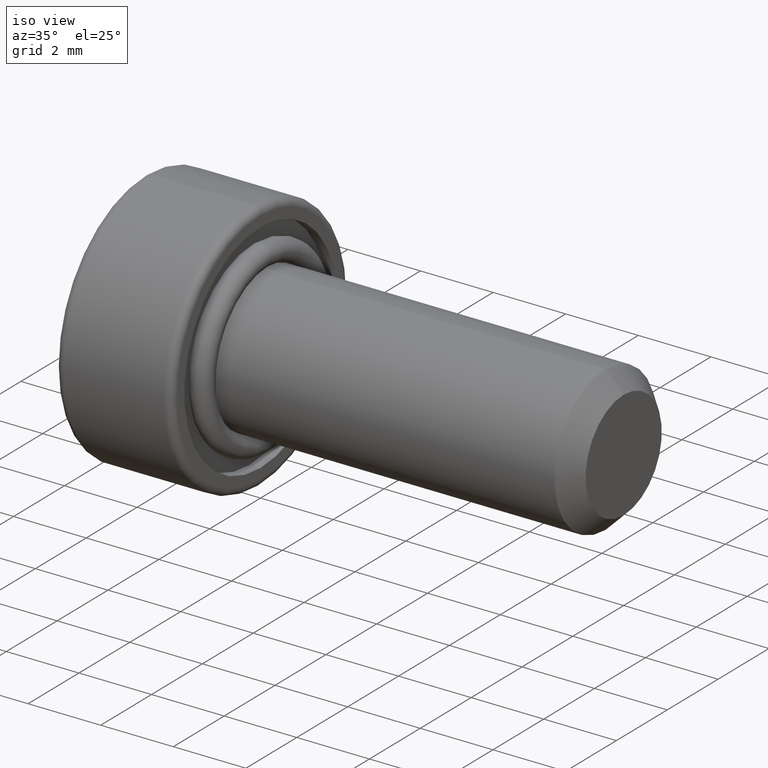
[diagram: clean part render]
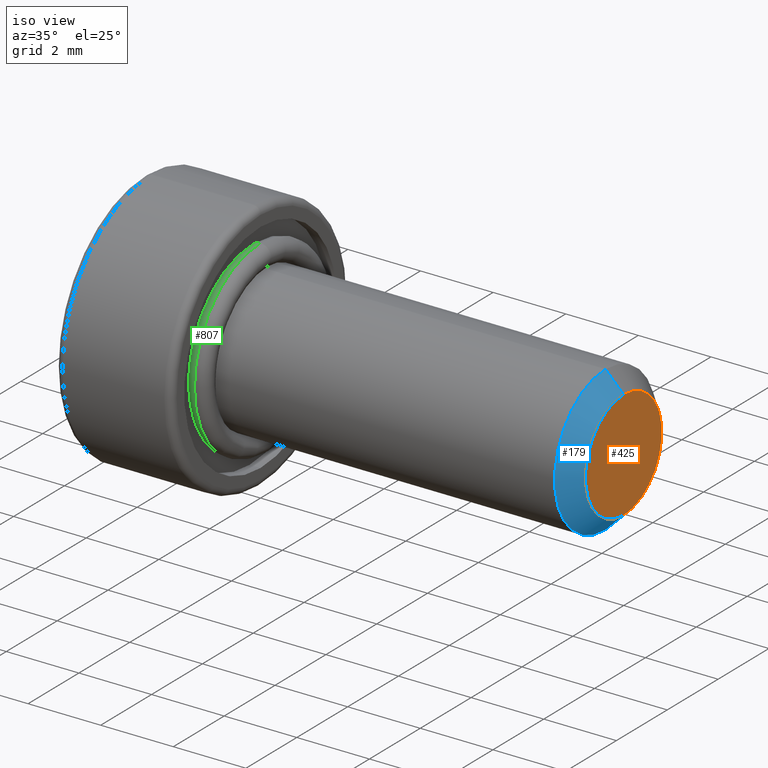
[diagram: same view with three faces highlighted in distinct colors, each labeled with its STEP entity id]
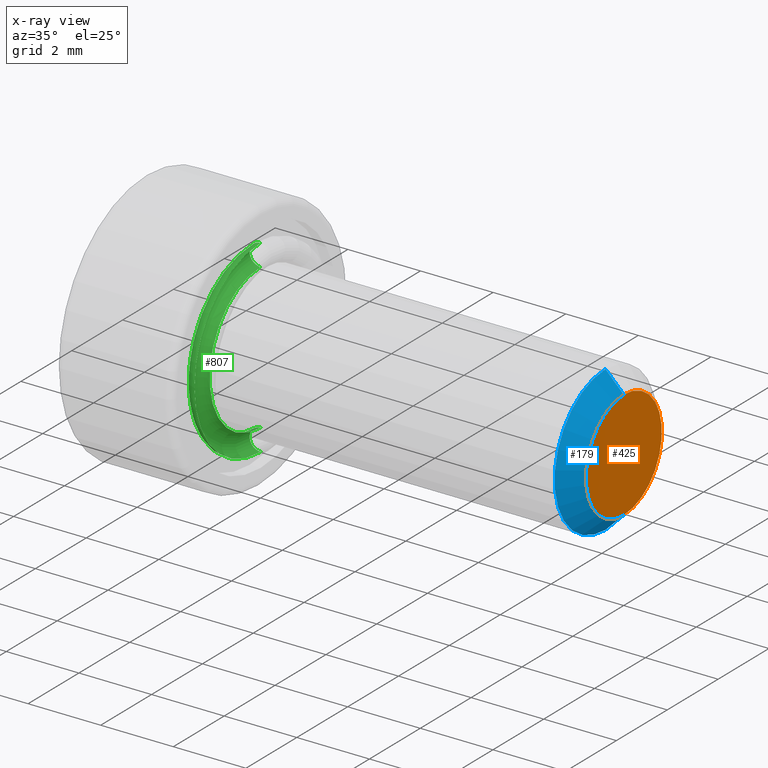
[diagram: x-ray of the same camera — body ghosted, the three highlighted faces saturated]
A machine part, iso view with three faces highlighted in distinct colors.
The next image is the same camera in x-ray (body ghosted, the three faces saturated) — at least one of them is partly hidden behind the body in this view.
Their STEP definitions:

[orange] entity #425 — the highlighted planar face has unit normal (1, 0, 0).
#7 = DIRECTION ( 'NONE',  ( 1.000000000000000000, 0.0000000000000000000, 0.0000000000000000000 ) ) ;
#9 = CIRCLE ( 'NONE', #85, 1.500000000000003100 ) ;
#81 = PLANE ( 'NONE',  #233 ) ;
#85 = AXIS2_PLACEMENT_3D ( 'NONE', #520, #805, #343 ) ;
#102 = DIRECTION ( 'NONE',  ( 0.0000000000000000000, 0.0000000000000000000, -1.000000000000000000 ) ) ;
#233 = AXIS2_PLACEMENT_3D ( 'NONE', #700, #7, #501 ) ;
#343 = DIRECTION ( 'NONE',  ( 0.0000000000000000000, 0.0000000000000000000, -1.000000000000000000 ) ) ;
#378 = EDGE_LOOP ( 'NONE', ( #660, #514 ) ) ;
#383 = AXIS2_PLACEMENT_3D ( 'NONE', #702, #385, #102 ) ;
#385 = DIRECTION ( 'NONE',  ( 1.000000000000000000, 0.0000000000000000000, 0.0000000000000000000 ) ) ;
#425 = ADVANCED_FACE ( 'NONE', ( #606 ), #81, .T. ) ;
#468 = CARTESIAN_POINT ( 'NONE',  ( 10.00000000000000000, 0.0000000000000000000, 1.500000000000003100 ) ) ;
#501 = DIRECTION ( 'NONE',  ( 0.0000000000000000000, 0.0000000000000000000, -1.000000000000000000 ) ) ;
#514 = ORIENTED_EDGE ( 'NONE', *, *, #557, .T. ) ;
#520 = CARTESIAN_POINT ( 'NONE',  ( 10.00000000000000000, 0.0000000000000000000, 0.0000000000000000000 ) ) ;
#521 = CIRCLE ( 'NONE', #383, 1.500000000000003100 ) ;
#549 = VERTEX_POINT ( 'NONE', #656 ) ;
#557 = EDGE_CURVE ( 'NONE', #549, #582, #521, .T. ) ;
#582 = VERTEX_POINT ( 'NONE', #468 ) ;
#606 = FACE_OUTER_BOUND ( 'NONE', #378, .T. ) ;
#655 = EDGE_CURVE ( 'NONE', #582, #549, #9, .T. ) ;
#656 = CARTESIAN_POINT ( 'NONE',  ( 10.00000000000000000, 2.143131898507869800E-016, -1.500000000000003100 ) ) ;
#660 = ORIENTED_EDGE ( 'NONE', *, *, #655, .T. ) ;
#700 = CARTESIAN_POINT ( 'NONE',  ( 10.00000000000000000, 0.0000000000000000000, 0.0000000000000000000 ) ) ;
#702 = CARTESIAN_POINT ( 'NONE',  ( 10.00000000000000000, 0.0000000000000000000, 0.0000000000000000000 ) ) ;
#805 = DIRECTION ( 'NONE',  ( 1.000000000000000000, 0.0000000000000000000, 0.0000000000000000000 ) ) ;

[blue] entity #179 — the highlighted conical surface has half-angle 45 deg.
#9 = CIRCLE ( 'NONE', #85, 1.500000000000003100 ) ;
#19 = CIRCLE ( 'NONE', #291, 2.000000000000000000 ) ;
#84 = CONICAL_SURFACE ( 'NONE', #637, 1.500000000000003100, 0.7853981633974465000 ) ;
#85 = AXIS2_PLACEMENT_3D ( 'NONE', #520, #805, #343 ) ;
#86 = EDGE_CURVE ( 'NONE', #435, #109, #19, .T. ) ;
#92 = CARTESIAN_POINT ( 'NONE',  ( 10.00000000000000000, 0.0000000000000000000, 0.0000000000000000000 ) ) ;
#99 = ORIENTED_EDGE ( 'NONE', *, *, #655, .F. ) ;
#103 = DIRECTION ( 'NONE',  ( 0.0000000000000000000, 0.0000000000000000000, -1.000000000000000000 ) ) ;
#109 = VERTEX_POINT ( 'NONE', #147 ) ;
#120 = LINE ( 'NONE', #789, #256 ) ;
#128 = LINE ( 'NONE', #166, #368 ) ;
#147 = CARTESIAN_POINT ( 'NONE',  ( 9.500000000000001800, 0.0000000000000000000, 2.000000000000000000 ) ) ;
#166 = CARTESIAN_POINT ( 'NONE',  ( 10.00000000000000000, 0.0000000000000000000, 1.500000000000003100 ) ) ;
#168 = EDGE_CURVE ( 'NONE', #549, #435, #120, .T. ) ;
#179 = ADVANCED_FACE ( 'NONE', ( #774 ), #84, .T. ) ;
#192 = ORIENTED_EDGE ( 'NONE', *, *, #532, .T. ) ;
#256 = VECTOR ( 'NONE', #652, 999.9999999999998900 ) ;
#291 = AXIS2_PLACEMENT_3D ( 'NONE', #461, #545, #103 ) ;
#311 = DIRECTION ( 'NONE',  ( -1.000000000000000000, 0.0000000000000000000, 0.0000000000000000000 ) ) ;
#343 = DIRECTION ( 'NONE',  ( 0.0000000000000000000, 0.0000000000000000000, -1.000000000000000000 ) ) ;
#368 = VECTOR ( 'NONE', #666, 999.9999999999998900 ) ;
#435 = VERTEX_POINT ( 'NONE', #635 ) ;
#461 = CARTESIAN_POINT ( 'NONE',  ( 9.500000000000001800, 0.0000000000000000000, 0.0000000000000000000 ) ) ;
#468 = CARTESIAN_POINT ( 'NONE',  ( 10.00000000000000000, 0.0000000000000000000, 1.500000000000003100 ) ) ;
#520 = CARTESIAN_POINT ( 'NONE',  ( 10.00000000000000000, 0.0000000000000000000, 0.0000000000000000000 ) ) ;
#526 = ORIENTED_EDGE ( 'NONE', *, *, #86, .F. ) ;
#528 = EDGE_LOOP ( 'NONE', ( #776, #99, #192, #526 ) ) ;
#532 = EDGE_CURVE ( 'NONE', #582, #109, #128, .T. ) ;
#545 = DIRECTION ( 'NONE',  ( -1.000000000000000000, 0.0000000000000000000, 0.0000000000000000000 ) ) ;
#549 = VERTEX_POINT ( 'NONE', #656 ) ;
#565 = DIRECTION ( 'NONE',  ( 0.0000000000000000000, 0.0000000000000000000, 1.000000000000000000 ) ) ;
#582 = VERTEX_POINT ( 'NONE', #468 ) ;
#635 = CARTESIAN_POINT ( 'NONE',  ( 9.500000000000001800, 2.449293598294706400E-016, -2.000000000000000000 ) ) ;
#637 = AXIS2_PLACEMENT_3D ( 'NONE', #92, #311, #565 ) ;
#652 = DIRECTION ( 'NONE',  ( -0.7071067811865489100, 8.659560562354918100E-017, -0.7071067811865462400 ) ) ;
#655 = EDGE_CURVE ( 'NONE', #582, #549, #9, .T. ) ;
#656 = CARTESIAN_POINT ( 'NONE',  ( 10.00000000000000000, 2.143131898507869800E-016, -1.500000000000003100 ) ) ;
#666 = DIRECTION ( 'NONE',  ( -0.7071067811865489100, 0.0000000000000000000, 0.7071067811865462400 ) ) ;
#774 = FACE_OUTER_BOUND ( 'NONE', #528, .T. ) ;
#776 = ORIENTED_EDGE ( 'NONE', *, *, #168, .F. ) ;
#789 = CARTESIAN_POINT ( 'NONE',  ( 10.00000000000000000, 1.836970198721033400E-016, -1.500000000000003100 ) ) ;
#805 = DIRECTION ( 'NONE',  ( 1.000000000000000000, 0.0000000000000000000, 0.0000000000000000000 ) ) ;

[green] entity #807 — the highlighted toroidal blend (fillet) surface has major radius 2.3 mm and minor (blend) radius 0.3 mm.
#25 = CARTESIAN_POINT ( 'NONE',  ( 0.0000000000000000000, 0.0000000000000000000, 0.0000000000000000000 ) ) ;
#36 = CARTESIAN_POINT ( 'NONE',  ( 0.0000000000000000000, 0.0000000000000000000, 0.0000000000000000000 ) ) ;
#49 = VERTEX_POINT ( 'NONE', #336 ) ;
#61 = EDGE_CURVE ( 'NONE', #90, #49, #199, .T. ) ;
#90 = VERTEX_POINT ( 'NONE', #258 ) ;
#91 = CARTESIAN_POINT ( 'NONE',  ( 0.0000000000000000000, 0.0000000000000000000, -2.300000000000000300 ) ) ;
#98 = EDGE_CURVE ( 'NONE', #360, #90, #487, .T. ) ;
#107 = DIRECTION ( 'NONE',  ( -0.0000000000000000000, -1.000000000000000000, -0.0000000000000000000 ) ) ;
#114 = VERTEX_POINT ( 'NONE', #478 ) ;
#158 = DIRECTION ( 'NONE',  ( 0.0000000000000000000, 0.0000000000000000000, -1.000000000000000000 ) ) ;
#160 = ORIENTED_EDGE ( 'NONE', *, *, #98, .F. ) ;
#199 = CIRCLE ( 'NONE', #224, 2.600000000000000500 ) ;
#224 = AXIS2_PLACEMENT_3D ( 'NONE', #25, #393, #158 ) ;
#245 = CARTESIAN_POINT ( 'NONE',  ( -3.673940397442058300E-017, 0.0000000000000000000, 0.0000000000000000000 ) ) ;
#258 = CARTESIAN_POINT ( 'NONE',  ( 0.0000000000000000000, 3.184081677783118700E-016, 2.600000000000000500 ) ) ;
#264 = CARTESIAN_POINT ( 'NONE',  ( 0.0000000000000000000, 2.816687638038912500E-016, 2.300000000000000300 ) ) ;
#274 = AXIS2_PLACEMENT_3D ( 'NONE', #245, #704, #301 ) ;
#280 = CIRCLE ( 'NONE', #530, 0.2999999999999999300 ) ;
#301 = DIRECTION ( 'NONE',  ( 0.0000000000000000000, 0.0000000000000000000, -1.000000000000000000 ) ) ;
#320 = DIRECTION ( 'NONE',  ( 0.0000000000000000000, 1.000000000000000000, -1.224646799147353200E-016 ) ) ;
#336 = CARTESIAN_POINT ( 'NONE',  ( 0.0000000000000000000, 0.0000000000000000000, -2.600000000000000500 ) ) ;
#360 = VERTEX_POINT ( 'NONE', #718 ) ;
#381 = AXIS2_PLACEMENT_3D ( 'NONE', #264, #320, #447 ) ;
#382 = DIRECTION ( 'NONE',  ( 1.000000000000000000, -0.0000000000000000000, -0.0000000000000000000 ) ) ;
#393 = DIRECTION ( 'NONE',  ( 1.000000000000000000, -0.0000000000000000000, -0.0000000000000000000 ) ) ;
#400 = ORIENTED_EDGE ( 'NONE', *, *, #443, .T. ) ;
#406 = DIRECTION ( 'NONE',  ( 0.0000000000000000000, 0.0000000000000000000, -1.000000000000000000 ) ) ;
#434 = CIRCLE ( 'NONE', #274, 2.000000000000000400 ) ;
#443 = EDGE_CURVE ( 'NONE', #360, #114, #434, .T. ) ;
#447 = DIRECTION ( 'NONE',  ( 0.0000000000000000000, 1.224646799147353200E-016, 1.000000000000000000 ) ) ;
#478 = CARTESIAN_POINT ( 'NONE',  ( -3.673940397442057600E-017, 0.0000000000000000000, -2.000000000000000400 ) ) ;
#487 = CIRCLE ( 'NONE', #381, 0.2999999999999999300 ) ;
#527 = EDGE_CURVE ( 'NONE', #114, #49, #280, .T. ) ;
#530 = AXIS2_PLACEMENT_3D ( 'NONE', #91, #107, #406 ) ;
#540 = EDGE_LOOP ( 'NONE', ( #607, #160, #400, #562 ) ) ;
#562 = ORIENTED_EDGE ( 'NONE', *, *, #527, .T. ) ;
#607 = ORIENTED_EDGE ( 'NONE', *, *, #61, .F. ) ;
#620 = AXIS2_PLACEMENT_3D ( 'NONE', #36, #382, #817 ) ;
#622 = TOROIDAL_SURFACE ( 'NONE', #620, 2.300000000000000300, 0.2999999999999998800 ) ;
#704 = DIRECTION ( 'NONE',  ( 1.000000000000000000, -0.0000000000000000000, -0.0000000000000000000 ) ) ;
#718 = CARTESIAN_POINT ( 'NONE',  ( -3.673940397442057600E-017, 2.449293598294706900E-016, 2.000000000000000400 ) ) ;
#807 = ADVANCED_FACE ( 'NONE', ( #808 ), #622, .T. ) ;
#808 = FACE_OUTER_BOUND ( 'NONE', #540, .T. ) ;
#817 = DIRECTION ( 'NONE',  ( 0.0000000000000000000, 0.0000000000000000000, -1.000000000000000000 ) ) ;